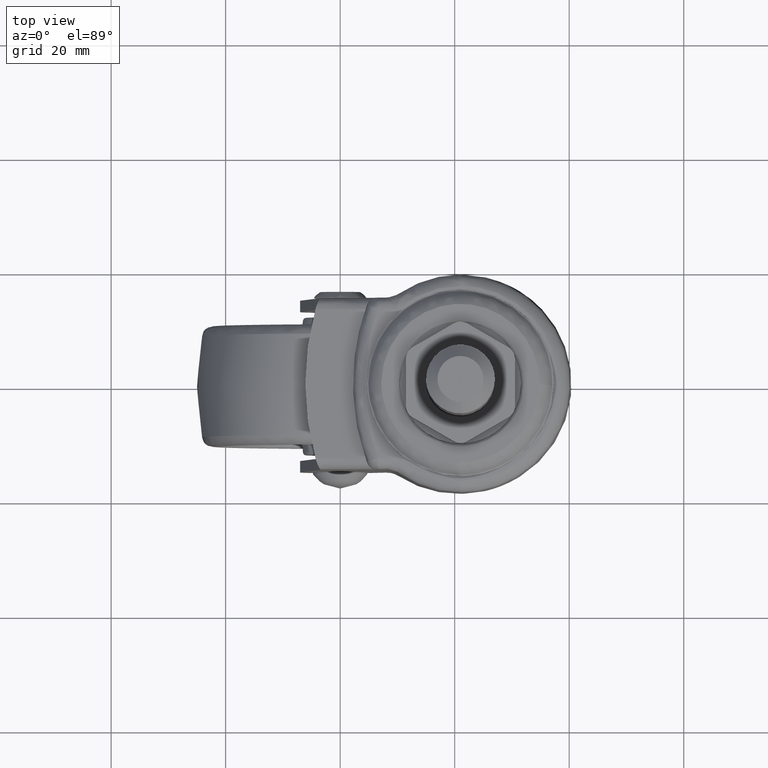
[diagram: clean part render]
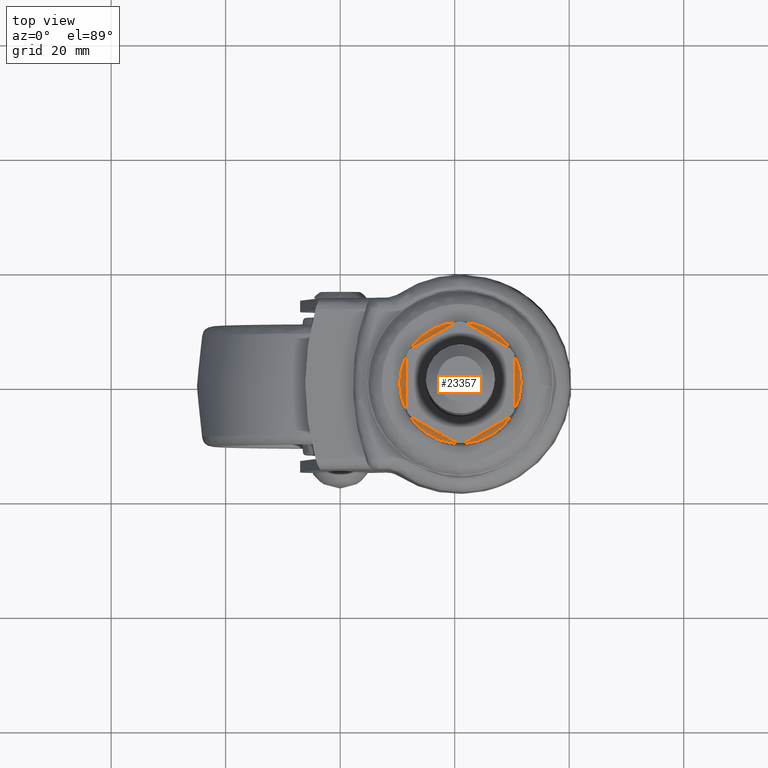
[diagram: same view with one face highlighted and labeled with its STEP entity id]
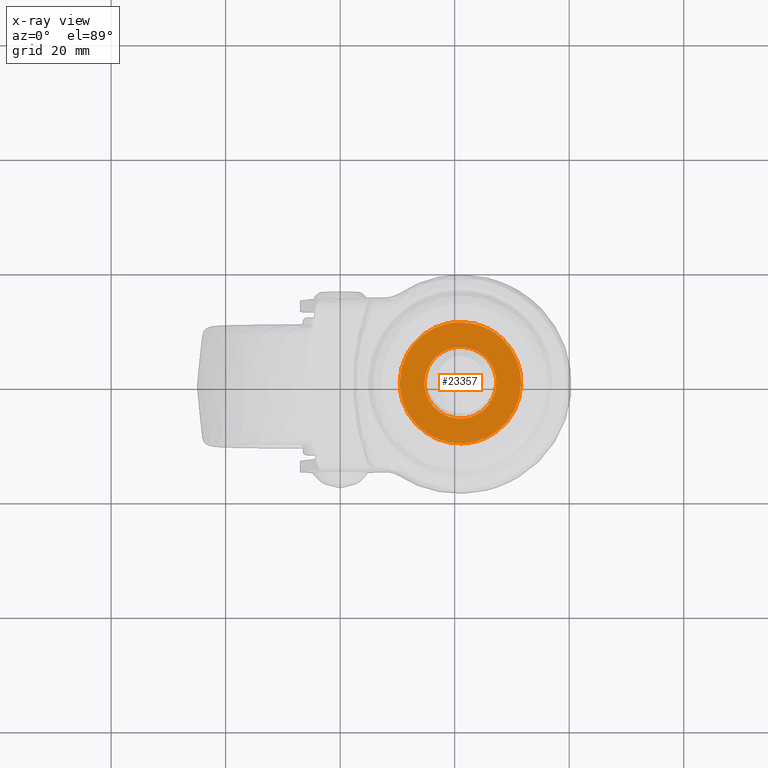
[diagram: x-ray of the same camera — body ghosted, the highlighted face saturated]
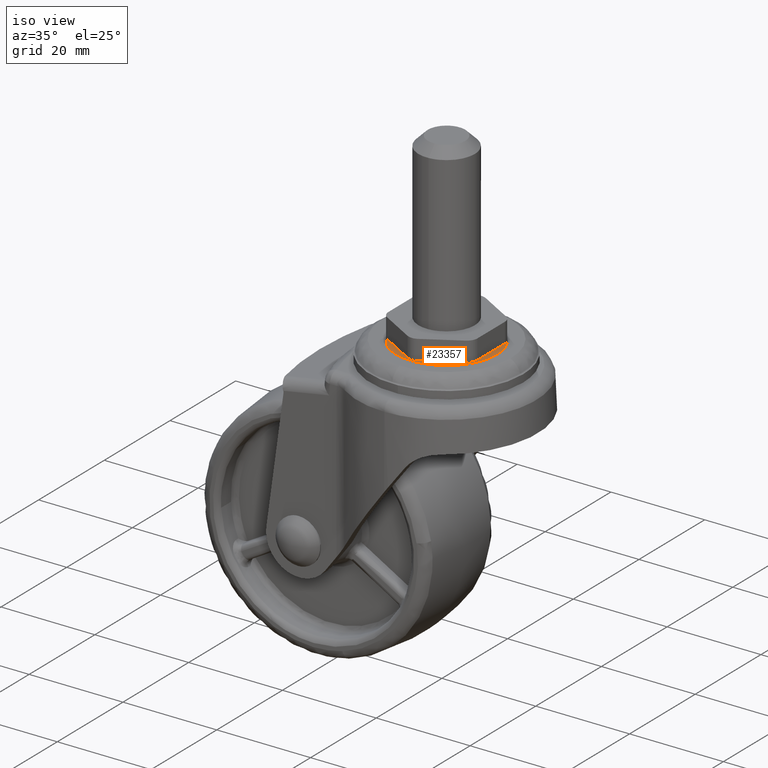
[diagram: same view with one face highlighted and labeled with its STEP entity id]
A machine part, top view. The second image highlights one B-rep face of the part: STEP entity #23357.
The next image is the same camera in x-ray: the body ghosted, the highlighted face saturated — about 2% of this face is hidden behind the body in this view.
A second angle (iso view) of the same face is appended — the face is thin or edge-on in the first view.
In plain terms, the highlighted face is a freeform B-spline surface patch.
Its self-contained STEP definition (entity closure, byte-faithful):
#20496=CARTESIAN_POINT('',(20.262285967287859,6.206309531915061,38.0));
#20497=VERTEX_POINT('',#20496);
#20498=CARTESIAN_POINT('',(27.250000000000000,1.421085E-014,38.0));
#20499=VERTEX_POINT('',#20498);
#20500=CARTESIAN_POINT('',(20.262285967287859,6.206309531915063,38.0));
#20501=CARTESIAN_POINT('',(20.629849185369281,6.250000000000014,38.0));
#20502=CARTESIAN_POINT('',(21.0,6.250000000000014,38.0));
#20503=CARTESIAN_POINT('',(27.250000000000000,6.250000000000014,37.999999999999993));
#20504=CARTESIAN_POINT('',(27.250000000000000,1.421085E-014,38.0));
#20512=(BOUNDED_CURVE()B_SPLINE_CURVE(2,(#20500,#20501,#20502,#20503,#20504),.UNSPECIFIED.,.F.,.U.)B_SPLINE_CURVE_WITH_KNOTS((3,2,3),(0.229562469915319,0.250000000000000,0.500000000000000),.UNSPECIFIED.)CURVE()GEOMETRIC_REPRESENTATION_ITEM()RATIONAL_B_SPLINE_CURVE((0.956026747131101,0.976055944115604,1.0,0.707106781186547,1.0))REPRESENTATION_ITEM(''));
#20513=EDGE_CURVE('',#20497,#20499,#20512,.T.);
#20554=CARTESIAN_POINT('',(21.381553372153260,-6.238342490132959,38.0));
#20555=VERTEX_POINT('',#20554);
#20561=CARTESIAN_POINT('',(27.250000000000000,1.421085E-014,38.0));
#20562=CARTESIAN_POINT('',(27.250000000000000,-5.879412918046532,38.000000000000007));
#20563=CARTESIAN_POINT('',(21.381553372153256,-6.238342490132960,38.0));
#20571=(BOUNDED_CURVE()B_SPLINE_CURVE(2,(#20561,#20562,#20563),.UNSPECIFIED.,.F.,.U.)B_SPLINE_CURVE_WITH_KNOTS((3,3),(0.500000000000000,0.739332962238628),.UNSPECIFIED.)CURVE()GEOMETRIC_REPRESENTATION_ITEM()RATIONAL_B_SPLINE_CURVE((1.0,0.719603993287080,0.976072041666042))REPRESENTATION_ITEM(''));
#20572=EDGE_CURVE('',#20499,#20555,#20571,.T.);
#20595=CARTESIAN_POINT('',(14.750000000000000,1.421085E-014,38.0));
#20596=VERTEX_POINT('',#20595);
#20597=CARTESIAN_POINT('',(14.750000000000000,1.421085E-014,38.0));
#20598=CARTESIAN_POINT('',(14.750000000000009,5.551090668107082,37.999999999999993));
#20599=CARTESIAN_POINT('',(20.262285967287859,6.206309531915062,38.0));
#20607=(BOUNDED_CURVE()B_SPLINE_CURVE(2,(#20597,#20598,#20599),.UNSPECIFIED.,.F.,.U.)B_SPLINE_CURVE_WITH_KNOTS((3,3),(0.0,0.229562469915319),.UNSPECIFIED.)CURVE()GEOMETRIC_REPRESENTATION_ITEM()RATIONAL_B_SPLINE_CURVE((1.0,0.731050837070943,0.956026747131101))REPRESENTATION_ITEM(''));
#20608=EDGE_CURVE('',#20596,#20497,#20607,.T.);
#20610=CARTESIAN_POINT('',(21.381553372153256,-6.238342490132959,38.0));
#20611=CARTESIAN_POINT('',(21.190954770676747,-6.249999999999987,38.0));
#20612=CARTESIAN_POINT('',(21.0,-6.249999999999987,38.0));
#20613=CARTESIAN_POINT('',(14.750000000000007,-6.249999999999987,37.999999999999993));
#20614=CARTESIAN_POINT('',(14.750000000000000,1.421085E-014,38.0));
#20622=(BOUNDED_CURVE()B_SPLINE_CURVE(2,(#20610,#20611,#20612,#20613,#20614),.UNSPECIFIED.,.F.,.U.)B_SPLINE_CURVE_WITH_KNOTS((3,2,3),(0.739332962238627,0.750000000000000,1.0),.UNSPECIFIED.)CURVE()GEOMETRIC_REPRESENTATION_ITEM()RATIONAL_B_SPLINE_CURVE((0.976072041666041,0.987502787899467,1.0,0.707106781186547,1.0))REPRESENTATION_ITEM(''));
#20623=EDGE_CURVE('',#20555,#20596,#20622,.T.);
#20686=CARTESIAN_POINT('',(28.317224826740510,7.683425466356336,37.999999999999019));
#20687=VERTEX_POINT('',#20686);
#20688=CARTESIAN_POINT('',(31.610221772523001,1.421085E-014,38.0));
#20689=VERTEX_POINT('',#20688);
#20690=CARTESIAN_POINT('',(28.317224826740514,7.683425466356336,37.999999999999019));
#20691=CARTESIAN_POINT('',(31.610221772523005,4.547376827197183,38.0));
#20692=CARTESIAN_POINT('',(31.610221772523001,1.421085E-014,38.0));
#20700=(BOUNDED_CURVE()B_SPLINE_CURVE(2,(#20690,#20691,#20692),.UNSPECIFIED.,.F.,.U.)B_SPLINE_CURVE_WITH_KNOTS((3,3),(0.371317004906395,0.500000000000000),.UNSPECIFIED.)CURVE()GEOMETRIC_REPRESENTATION_ITEM()RATIONAL_B_SPLINE_CURVE((0.853680524553577,0.849238493441913,1.0))REPRESENTATION_ITEM(''));
#20701=EDGE_CURVE('',#20687,#20689,#20700,.T.);
#20703=CARTESIAN_POINT('',(10.389778227477001,1.421085E-014,38.0));
#20704=VERTEX_POINT('',#20703);
#20705=CARTESIAN_POINT('',(31.610221772523001,1.421085E-014,38.0));
#20706=CARTESIAN_POINT('',(31.610221772522998,-10.610221772522985,37.999999999999993));
#20707=CARTESIAN_POINT('',(21.0,-10.610221772522991,38.0));
#20708=CARTESIAN_POINT('',(10.389778227477001,-10.610221772522985,37.999999999999993));
#20709=CARTESIAN_POINT('',(10.389778227477001,1.421085E-014,38.0));
#20717=(BOUNDED_CURVE()B_SPLINE_CURVE(2,(#20705,#20706,#20707,#20708,#20709),.UNSPECIFIED.,.F.,.U.)B_SPLINE_CURVE_WITH_KNOTS((3,2,3),(0.500000000000000,0.750000000000000,1.0),.UNSPECIFIED.)CURVE()GEOMETRIC_REPRESENTATION_ITEM()RATIONAL_B_SPLINE_CURVE((1.0,0.707106781186547,1.0,0.707106781186547,1.0))REPRESENTATION_ITEM(''));
#20718=EDGE_CURVE('',#20689,#20704,#20717,.T.);
#20720=CARTESIAN_POINT('',(21.092590477014578,10.609817767788829,38.0));
#20721=VERTEX_POINT('',#20720);
#20722=CARTESIAN_POINT('',(10.389778227477001,1.421085E-014,38.0));
#20723=CARTESIAN_POINT('',(10.389778227477001,10.610221772523014,37.999999999999993));
#20724=CARTESIAN_POINT('',(21.0,10.610221772523010,38.0));
#20725=CARTESIAN_POINT('',(21.046296119950014,10.610221772523014,38.0));
#20726=CARTESIAN_POINT('',(21.092590477014582,10.609817767788833,38.0));
#20734=(BOUNDED_CURVE()B_SPLINE_CURVE(2,(#20722,#20723,#20724,#20725,#20726),.UNSPECIFIED.,.F.,.U.)B_SPLINE_CURVE_WITH_KNOTS((3,2,3),(0.0,0.250000000000000,0.251539894337346),.UNSPECIFIED.)CURVE()GEOMETRIC_REPRESENTATION_ITEM()RATIONAL_B_SPLINE_CURVE((1.0,0.707106781186547,1.0,0.998195901563609,0.996414028094947))REPRESENTATION_ITEM(''));
#20735=EDGE_CURVE('',#20704,#20721,#20734,.T.);
#20830=CARTESIAN_POINT('',(21.092590477014578,10.609817767788831,38.000000000000007));
#20831=CARTESIAN_POINT('',(25.282774025563441,10.573250589885520,37.999999999999993));
#20832=CARTESIAN_POINT('',(28.317224826740514,7.683425466356336,37.999999999999019));
#20840=(BOUNDED_CURVE()B_SPLINE_CURVE(2,(#20830,#20831,#20832),.UNSPECIFIED.,.F.,.U.)B_SPLINE_CURVE_WITH_KNOTS((3,3),(0.251539894337346,0.371317004906394),.UNSPECIFIED.)CURVE()GEOMETRIC_REPRESENTATION_ITEM()RATIONAL_B_SPLINE_CURVE((0.996414028094947,0.857815131859119,0.853680524553577))REPRESENTATION_ITEM(''));
#20841=EDGE_CURVE('',#20721,#20687,#20840,.T.);
#23340=CARTESIAN_POINT('',(32.670183085671063,-11.670162843244960,38.0));
#23341=CARTESIAN_POINT('',(9.329816534877848,-11.670162843244960,38.0));
#23342=CARTESIAN_POINT('',(32.670183085671063,11.669757968921450,38.0));
#23343=CARTESIAN_POINT('',(9.329816534877846,11.669757968921450,38.0));
#23344=B_SPLINE_SURFACE_WITH_KNOTS('',1,1,((#23340,#23342),(#23341,#23343)),.UNSPECIFIED.,.F.,.F.,.U.,(2,2),(2,2),(0.0,23.340366550793210),(0.0,23.339920812166412),.UNSPECIFIED.);
#23345=ORIENTED_EDGE('',*,*,#20718,.F.);
#23346=ORIENTED_EDGE('',*,*,#20701,.F.);
#23347=ORIENTED_EDGE('',*,*,#20841,.F.);
#23348=ORIENTED_EDGE('',*,*,#20735,.F.);
#23349=EDGE_LOOP('',(#23345,#23346,#23347,#23348));
#23350=FACE_OUTER_BOUND('',#23349,.T.);
#23351=ORIENTED_EDGE('',*,*,#20572,.T.);
#23352=ORIENTED_EDGE('',*,*,#20623,.T.);
#23353=ORIENTED_EDGE('',*,*,#20608,.T.);
#23354=ORIENTED_EDGE('',*,*,#20513,.T.);
#23355=EDGE_LOOP('',(#23351,#23352,#23353,#23354));
#23356=FACE_BOUND('',#23355,.T.);
#23357=ADVANCED_FACE('',(#23350,#23356),#23344,.F.);